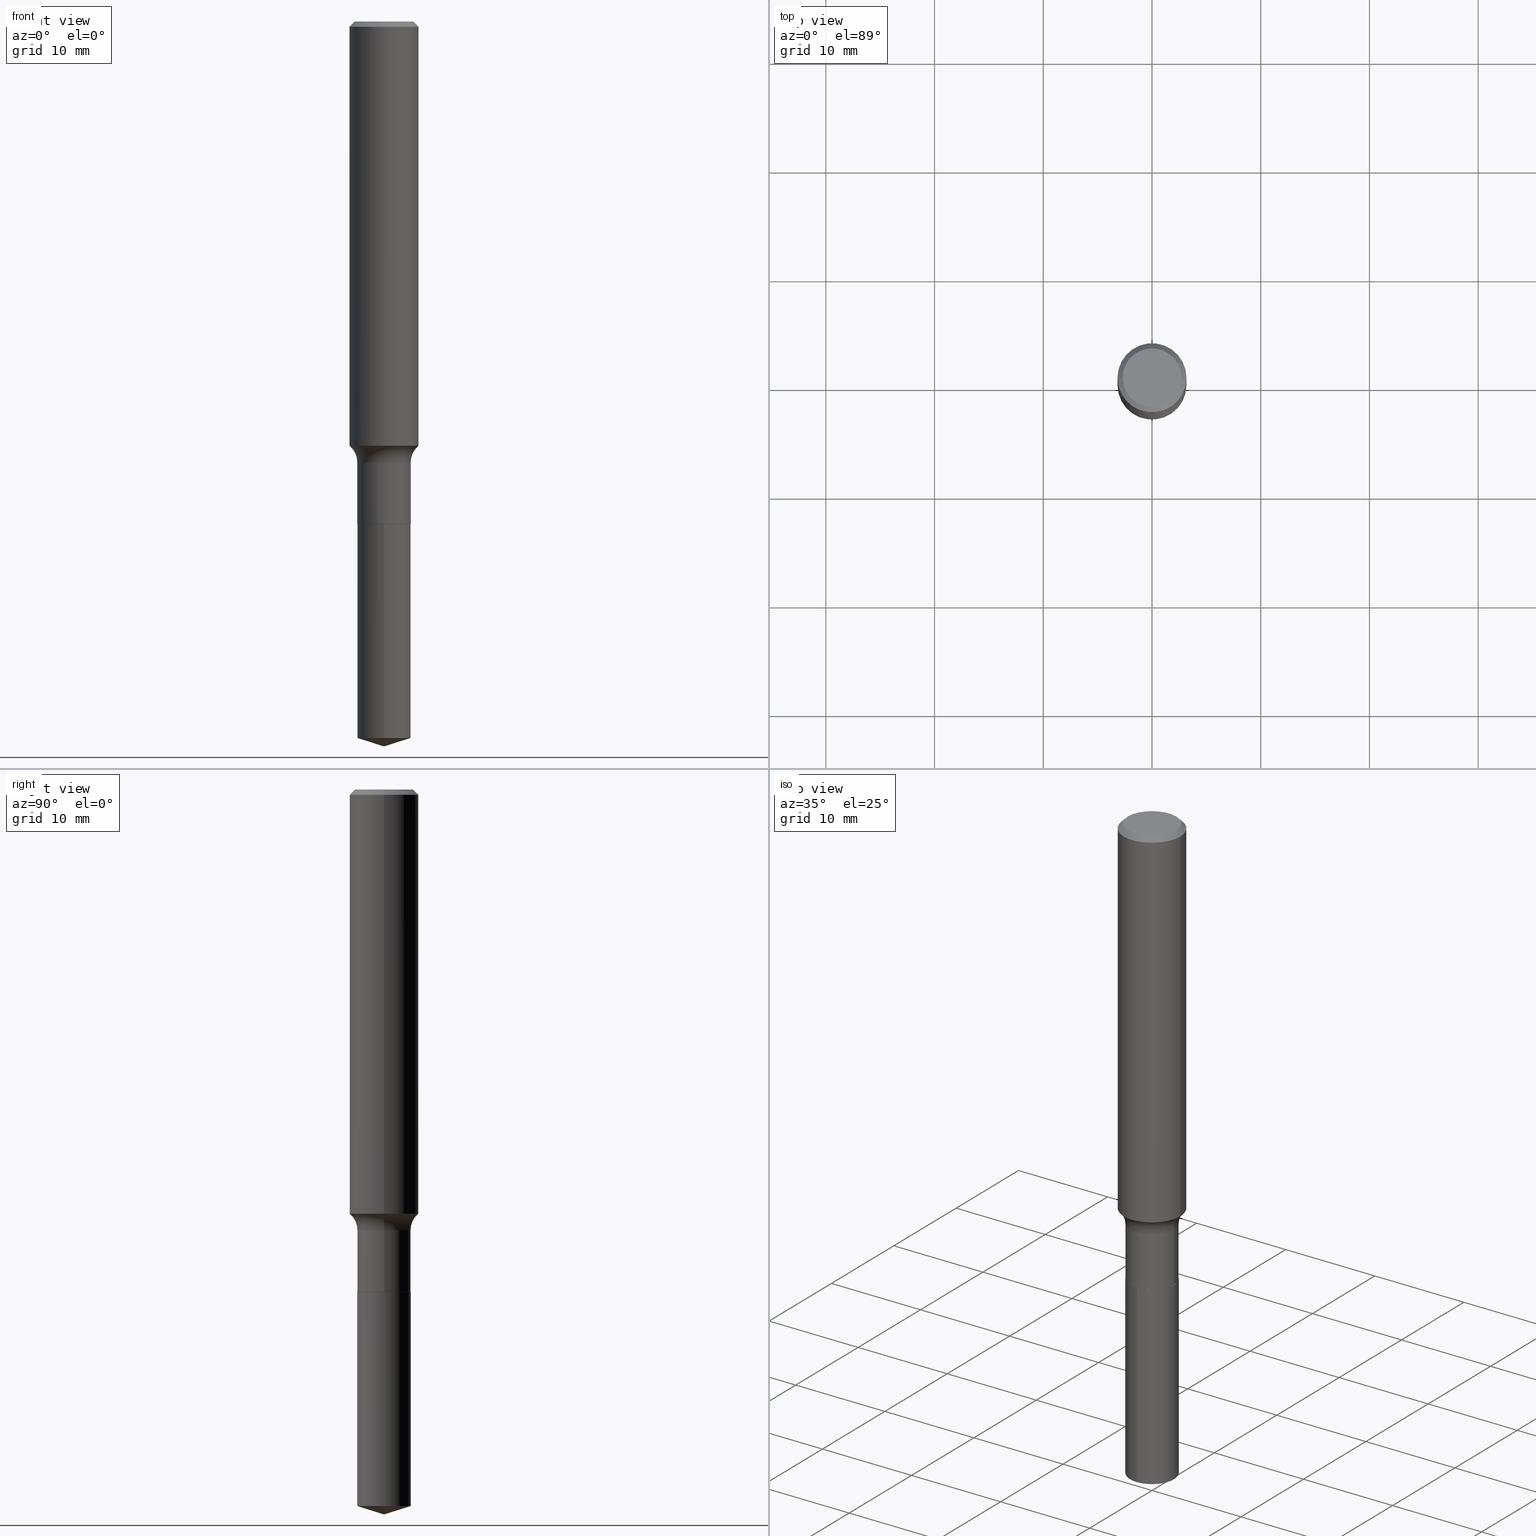
[diagram: canonical four-view strip — front | top / right | iso, engineering-drawing reading convention]
A machine part, canonical four-view strip (front | top / right | iso — engineering-drawing reading convention). The complete STEP part file that produces these views, byte-faithful:
ISO-10303-21;
HEADER;
FILE_DESCRIPTION (( 'STEP AP203' ),
    '1' );
FILE_NAME ('51775.STEP',
    '2024-04-19T13:22:10',
    ( '' ),
    ( '' ),
    'SwSTEP 2.0',
    'SolidWorks 2023',
    '' );
FILE_SCHEMA (( 'CONFIG_CONTROL_DESIGN' ));
ENDSEC;

DATA;
#1 = DIRECTION ( 'NONE',  ( 1.000000000000000000, -6.982962677686266711E-15, 4.876176775795935793E-29 ) ) ;
#2 = DIRECTION ( 'NONE',  ( -2.445468806185136597E-29, 3.491481338843145583E-15, 1.000000000000000000 ) ) ;
#3 = APPLICATION_PROTOCOL_DEFINITION ( 'international standard', 'config_control_design', 1994, #418 ) ;
#4 = VERTEX_POINT ( 'NONE', #309 ) ;
#5 = LINE ( 'NONE', #106, #86 ) ;
#6 = CIRCLE ( 'NONE', #203, 0.09674999999999996103 ) ;
#7 = EDGE_CURVE ( 'NONE', #466, #4, #6, .T. ) ;
#8 = PERSON ( 'UNSPECIFIED', 'UNSPECIFIED', 'UNSPECIFIED', ('UNSPECIFIED'), ('UNSPECIFIED'), ('UNSPECIFIED') ) ;
#9 = DATE_AND_TIME ( #123, #224 ) ;
#10 = ORIENTED_EDGE ( 'NONE', *, *, #220, .F. ) ;
#11 = DIRECTION ( 'NONE',  ( 0.000000000000000000, 0.000000000000000000, 1.000000000000000000 ) ) ;
#12 = ORIENTED_EDGE ( 'NONE', *, *, #89, .F. ) ;
#13 = PERSON_AND_ORGANIZATION ( #8, #426 ) ;
#14 = EDGE_LOOP ( 'NONE', ( #356, #412, #478, #138 ) ) ;
#15 = EDGE_CURVE ( 'NONE', #339, #4, #213, .T. ) ;
#16 = AXIS2_PLACEMENT_3D ( 'NONE', #57, #143, #209 ) ;
#17 = AXIS2_PLACEMENT_3D ( 'NONE', #406, #42, #186 ) ;
#18 = AXIS2_PLACEMENT_3D ( 'NONE', #191, #295, #447 ) ;
#19 = ORIENTED_EDGE ( 'NONE', *, *, #300, .T. ) ;
#20 = DIRECTION ( 'NONE',  ( -2.445468806185136597E-29, 3.491481338843145583E-15, 1.000000000000000000 ) ) ;
#21 = EDGE_CURVE ( 'NONE', #360, #248, #107, .T. ) ;
#22 = CIRCLE ( 'NONE', #411, 0.09675000000000000266 ) ;
#23 = DIRECTION ( 'NONE',  ( 1.000000000000000000, -6.982962677686266711E-15, 0.000000000000000000 ) ) ;
#24 = ORIENTED_EDGE ( 'NONE', *, *, #425, .F. ) ;
#25 = DIRECTION ( 'NONE',  ( -2.445445033381510289E-29, 3.491515382851002503E-15, 1.000000000000000000 ) ) ;
#26 = EDGE_LOOP ( 'NONE', ( #73, #19, #316 ) ) ;
#27 = CARTESIAN_POINT ( 'NONE',  ( 0.1250000000000000833, -8.728703347107839305E-16, 6.095220969744923945E-30 ) ) ;
#28 = ORIENTED_EDGE ( 'NONE', *, *, #481, .F. ) ;
#29 = AXIS2_PLACEMENT_3D ( 'NONE', #473, #20, #175 ) ;
#30 = CONICAL_SURFACE ( 'NONE', #276, 0.09625000000000000222, 0.7853981633975336552 ) ;
#31 = DIRECTION ( 'NONE',  ( -2.445445033381510289E-29, 3.491515382851002503E-15, 1.000000000000000000 ) ) ;
#32 = FACE_OUTER_BOUND ( 'NONE', #102, .T. ) ;
#33 = DIRECTION ( 'NONE',  ( -2.445468806185136597E-29, 3.491481338843145583E-15, 1.000000000000000000 ) ) ;
#34 = CYLINDRICAL_SURFACE ( 'NONE', #401, 0.1250000000000000833 ) ;
#35 = CARTESIAN_POINT ( 'NONE',  ( -0.09625000000000000222, -5.665361431517164076E-15, -1.818500000000000005 ) ) ;
#36 = MANIFOLD_SOLID_BREP ( 'Body-Move/Copy2[2]', #327 ) ;
#37 = DIRECTION ( 'NONE',  ( -2.445445033381510289E-29, 3.491515382851002503E-15, 1.000000000000000000 ) ) ;
#38 = ADVANCED_FACE ( 'NONE', ( #32 ), #386, .F. ) ;
#39 = EDGE_LOOP ( 'NONE', ( #273, #341, #233, #88 ) ) ;
#40 = AXIS2_PLACEMENT_3D ( 'NONE', #260, #147, #110 ) ;
#41 = FACE_OUTER_BOUND ( 'NONE', #330, .T. ) ;
#42 = DIRECTION ( 'NONE',  ( -2.438088387897960049E-29, 3.491481338843145188E-15, 1.000000000000000000 ) ) ;
#43 = ADVANCED_FACE ( 'NONE', ( #286 ), #34, .T. ) ;
#44 = APPROVAL_DATE_TIME ( #50, #285 ) ;
#45 = ORIENTED_EDGE ( 'NONE', *, *, #49, .F. ) ;
#46 = CC_DESIGN_PERSON_AND_ORGANIZATION_ASSIGNMENT ( #194, #419, ( #289 ) ) ;
#47 = VECTOR ( 'NONE', #185, 39.37007874015748143 ) ;
#48 = COORDINATED_UNIVERSAL_TIME_OFFSET ( 5, 0, .BEHIND. ) ;
#49 = EDGE_CURVE ( 'NONE', #393, #170, #471, .T. ) ;
#50 = DATE_AND_TIME ( #119, #489 ) ;
#51 = ORIENTED_EDGE ( 'NONE', *, *, #180, .F. ) ;
#52 = ORIENTED_EDGE ( 'NONE', *, *, #55, .F. ) ;
#53 = CONICAL_SURFACE ( 'NONE', #255, 124.8659371009115091, 1.265363707695883466 ) ;
#54 = PERSON_AND_ORGANIZATION ( #8, #426 ) ;
#55 = EDGE_CURVE ( 'NONE', #248, #466, #400, .T. ) ;
#56 = CARTESIAN_POINT ( 'NONE',  ( 4.447085024047671457E-29, -6.349258814686260126E-15, -1.818500000000000005 ) ) ;
#57 = CARTESIAN_POINT ( 'NONE',  ( 3.902968214671478497E-29, -5.572404216793660273E-15, -1.596000000000000085 ) ) ;
#58 = ORIENTED_EDGE ( 'NONE', *, *, #7, .T. ) ;
#59 = VECTOR ( 'NONE', #146, 39.37007874015748143 ) ;
#60 = CARTESIAN_POINT ( 'NONE',  ( 6.419293212626464648E-29, -9.165227879983881620E-15, -2.625000000000000000 ) ) ;
#61 = ORIENTED_EDGE ( 'NONE', *, *, #89, .T. ) ;
#62 = ADVANCED_FACE ( 'NONE', ( #71 ), #184, .F. ) ;
#63 = FACE_OUTER_BOUND ( 'NONE', #311, .T. ) ;
#64 = ORIENTED_EDGE ( 'NONE', *, *, #408, .F. ) ;
#65 = CYLINDRICAL_SURFACE ( 'NONE', #176, 0.09675000000000000266 ) ;
#66 = DIRECTION ( 'NONE',  ( 2.438088387897960049E-29, -3.491481338843145188E-15, -1.000000000000000000 ) ) ;
#67 = VECTOR ( 'NONE', #322, 39.37007874015748143 ) ;
#68 = CONICAL_SURFACE ( 'NONE', #77, 124.8659371009115091, 1.265363707695883466 ) ;
#69 = CYLINDRICAL_SURFACE ( 'NONE', #281, 0.1250000000000000833 ) ;
#70 = DIRECTION ( 'NONE',  ( -2.445468806185136597E-29, 3.491481338843145583E-15, 1.000000000000000000 ) ) ;
#71 = FACE_OUTER_BOUND ( 'NONE', #235, .T. ) ;
#72 = DIRECTION ( 'NONE',  ( 1.000000000000000000, -6.982962677686266711E-15, 4.875930095424100059E-29 ) ) ;
#73 = ORIENTED_EDGE ( 'NONE', *, *, #357, .F. ) ;
#74 = DIRECTION ( 'NONE',  ( -2.445445033381510289E-29, 3.491515382851002503E-15, 1.000000000000000000 ) ) ;
#75 = PRODUCT_DEFINITION ( 'UNKNOWN', '', #387, #240 ) ;
#76 = AXIS2_PLACEMENT_3D ( 'NONE', #477, #427, #392 ) ;
#77 = AXIS2_PLACEMENT_3D ( 'NONE', #480, #179, #282 ) ;
#78 = DIRECTION ( 'NONE',  ( -2.445468806185136597E-29, 3.491481338843145583E-15, 1.000000000000000000 ) ) ;
#79 = EDGE_LOOP ( 'NONE', ( #83, #353 ) ) ;
#80 = DIRECTION ( 'NONE',  ( -2.445468806185136597E-29, 3.491481338843145583E-15, 1.000000000000000000 ) ) ;
#81 = PERSON_AND_ORGANIZATION ( #8, #426 ) ;
#82 = CC_DESIGN_DATE_AND_TIME_ASSIGNMENT ( #343, #274, ( #75 ) ) ;
#83 = ORIENTED_EDGE ( 'NONE', *, *, #329, .F. ) ;
#84 = DIRECTION ( 'NONE',  ( -6.982962677686266711E-15, -1.000000000000000000, 3.500519750498804223E-15 ) ) ;
#85 = CONICAL_SURFACE ( 'NONE', #351, 0.1250000000000000000, 0.7853981633974447263 ) ;
#86 = VECTOR ( 'NONE', #367, 39.37007874015748143 ) ;
#87 = APPROVAL_ROLE ( '' ) ;
#88 = ORIENTED_EDGE ( 'NONE', *, *, #354, .F. ) ;
#89 = EDGE_CURVE ( 'NONE', #170, #91, #358, .T. ) ;
#90 = APPROVAL_STATUS ( 'not_yet_approved' ) ;
#91 = VERTEX_POINT ( 'NONE', #321 ) ;
#92 = CARTESIAN_POINT ( 'NONE',  ( -6.756016390661017652E-16, -0.09675000000000634481, -1.818499999999999783 ) ) ;
#93 = AXIS2_PLACEMENT_3D ( 'NONE', #214, #115, #142 ) ;
#94 = APPROVAL_ROLE ( '' ) ;
#95 = ADVANCED_FACE ( 'NONE', ( #63 ), #101, .T. ) ;
#96 = CARTESIAN_POINT ( 'NONE',  ( 4.447085024047671457E-29, -6.349258814686260126E-15, -1.818500000000000005 ) ) ;
#97 = VERTEX_POINT ( 'NONE', #250 ) ;
#98 = CARTESIAN_POINT ( 'NONE',  ( 4.445862289644578656E-29, -6.347513074016838623E-15, -1.818000000000000060 ) ) ;
#99 = AXIS2_PLACEMENT_3D ( 'NONE', #399, #204, #140 ) ;
#100 = VERTEX_POINT ( 'NONE', #60 ) ;
#101 = CYLINDRICAL_SURFACE ( 'NONE', #254, 0.09674999999999996103 ) ;
#102 = EDGE_LOOP ( 'NONE', ( #24, #64, #125, #58 ) ) ;
#103 = CARTESIAN_POINT ( 'NONE',  ( 0.000000000000000000, 0.000000000000000000, 0.000000000000000000 ) ) ;
#104 = DIRECTION ( 'NONE',  ( 1.000000000000000000, -6.982962677686266711E-15, 4.876176775795935793E-29 ) ) ;
#105 = DIRECTION ( 'NONE',  ( -0.7071067811866078578, 7.493145998870571886E-15, 0.7071067811864871766 ) ) ;
#106 = CARTESIAN_POINT ( 'NONE',  ( 6.419293212626464648E-29, -9.165227879983881620E-15, -2.625000000000000000 ) ) ;
#107 = LINE ( 'NONE', #294, #161 ) ;
#108 = AXIS2_PLACEMENT_3D ( 'NONE', #326, #150, #296 ) ;
#109 = EDGE_CURVE ( 'NONE', #4, #466, #200, .T. ) ;
#110 = DIRECTION ( 'NONE',  ( 1.000000000000000000, -6.982962677686265922E-15, 0.000000000000000000 ) ) ;
#111 = CARTESIAN_POINT ( 'NONE',  ( 6.344737756776535245E-29, -9.058656743156652309E-15, -2.594494842175957938 ) ) ;
#112 = VERTEX_POINT ( 'NONE', #202 ) ;
#113 = CARTESIAN_POINT ( 'NONE',  ( -0.1250000000000001388, -4.474477035340341246E-15, -1.535925567002259795 ) ) ;
#114 = VECTOR ( 'NONE', #241, 39.37007874015748143 ) ;
#115 = DIRECTION ( 'NONE',  ( 2.445445033381510008E-29, -3.491515382851002503E-15, -1.000000000000000000 ) ) ;
#116 = DIRECTION ( 'NONE',  ( -2.445468806185136597E-29, 3.491481338843145583E-15, 1.000000000000000000 ) ) ;
#117 = PERSON_AND_ORGANIZATION_ROLE ( 'creator' ) ;
#118 = ORIENTED_EDGE ( 'NONE', *, *, #145, .F. ) ;
#119 = CALENDAR_DATE ( 2024, 19, 4 ) ;
#120 =( NAMED_UNIT ( * ) SI_UNIT ( $, .STERADIAN. ) SOLID_ANGLE_UNIT ( ) );
#121 = CIRCLE ( 'NONE', #29, 0.1250000000000000000 ) ;
#122 = CIRCLE ( 'NONE', #345, 0.1062499999999999972 ) ;
#123 = CALENDAR_DATE ( 2024, 19, 4 ) ;
#124 = DIRECTION ( 'NONE',  ( -2.445468806185136597E-29, 3.491481338843145583E-15, 1.000000000000000000 ) ) ;
#125 = ORIENTED_EDGE ( 'NONE', *, *, #127, .T. ) ;
#126 = ORIENTED_EDGE ( 'NONE', *, *, #21, .T. ) ;
#127 = EDGE_CURVE ( 'NONE', #170, #466, #261, .T. ) ;
#128 = AXIS2_PLACEMENT_3D ( 'NONE', #445, #216, #251 ) ;
#129 = APPROVAL_PERSON_ORGANIZATION ( #54, #464, #94 ) ;
#130 = CARTESIAN_POINT ( 'NONE',  ( -0.1250000000000000000, -1.825881945371762185E-15, -0.01875000000000013115 ) ) ;
#131 = APPROVAL_STATUS ( 'not_yet_approved' ) ;
#132 = CC_DESIGN_DATE_AND_TIME_ASSIGNMENT ( #165, #246, ( #201 ) ) ;
#133 = EDGE_CURVE ( 'NONE', #268, #155, #434, .T. ) ;
#134 = DIRECTION ( 'NONE',  ( -6.982962677686265922E-15, -1.000000000000000000, 2.823615497327403880E-15 ) ) ;
#135 = ORIENTED_EDGE ( 'NONE', *, *, #324, .F. ) ;
#136 = CARTESIAN_POINT ( 'NONE',  ( 4.585254011597162998E-31, -6.546527510330944066E-17, -0.01875000000000013115 ) ) ;
#137 = CC_DESIGN_APPROVAL ( #389, ( #387 ) ) ;
#138 = ORIENTED_EDGE ( 'NONE', *, *, #21, .F. ) ;
#139 = LOCAL_TIME ( 9, 22, 10.00000000000000000, #239 ) ;
#140 = DIRECTION ( 'NONE',  ( 1.000000000000000000, -6.982962677686261977E-15, 0.000000000000000000 ) ) ;
#141 = VERTEX_POINT ( 'NONE', #279 ) ;
#142 = DIRECTION ( 'NONE',  ( 6.982962677686265922E-15, 1.000000000000000000, -3.491515382851002503E-15 ) ) ;
#143 = DIRECTION ( 'NONE',  ( -2.445468806185136597E-29, 3.491481338843145583E-15, 1.000000000000000000 ) ) ;
#144 = CARTESIAN_POINT ( 'NONE',  ( 0.09674999999999996103, -6.756016390661460400E-16, 4.717701030582566422E-30 ) ) ;
#145 = EDGE_CURVE ( 'NONE', #208, #91, #292, .T. ) ;
#146 = DIRECTION ( 'NONE',  ( 0.7071067811865450192, -7.319954787623246579E-15, -0.7071067811865500152 ) ) ;
#147 = DIRECTION ( 'NONE',  ( -2.445468806185136597E-29, 3.491481338843145583E-15, 1.000000000000000000 ) ) ;
#148 = VECTOR ( 'NONE', #105, 39.37007874015748143 ) ;
#149 = CARTESIAN_POINT ( 'NONE',  ( 4.447085024047671457E-29, -6.349258814686260126E-15, -1.818500000000000005 ) ) ;
#150 = DIRECTION ( 'NONE',  ( 2.445468806185136597E-29, -3.491481338843145583E-15, -1.000000000000000000 ) ) ;
#151 = ADVANCED_FACE ( 'NONE', ( #314 ), #65, .T. ) ;
#152 = CARTESIAN_POINT ( 'NONE',  ( 3.902968214671478497E-29, -5.572404216793660273E-15, -1.596000000000000085 ) ) ;
#153 = AXIS2_PLACEMENT_3D ( 'NONE', #247, #211, #23 ) ;
#154 = APPROVAL_ROLE ( '' ) ;
#155 = VERTEX_POINT ( 'NONE', #173 ) ;
#156 = CIRCLE ( 'NONE', #18, 0.07799999999999995826 ) ;
#157 = DIRECTION ( 'NONE',  ( 1.000000000000000000, -6.982962677686269077E-15, 0.000000000000000000 ) ) ;
#158 = ORIENTED_EDGE ( 'NONE', *, *, #451, .F. ) ;
#159 = APPROVAL_DATE_TIME ( #9, #389 ) ;
#160 = ORIENTED_EDGE ( 'NONE', *, *, #348, .T. ) ;
#161 = VECTOR ( 'NONE', #256, 39.37007874015748143 ) ;
#162 =( GEOMETRIC_REPRESENTATION_CONTEXT ( 3 ) GLOBAL_UNCERTAINTY_ASSIGNED_CONTEXT ( ( #172 ) ) GLOBAL_UNIT_ASSIGNED_CONTEXT ( ( #196, #382, #120 ) ) REPRESENTATION_CONTEXT ( 'NONE', 'WORKASPACE' ) );
#163 = ORIENTED_EDGE ( 'NONE', *, *, #377, .T. ) ;
#164 = ADVANCED_FACE ( 'NONE', ( #484 ), #317, .T. ) ;
#165 = DATE_AND_TIME ( #414, #404 ) ;
#166 = CYLINDRICAL_SURFACE ( 'NONE', #443, 0.09674999999999996103 ) ;
#167 = CIRCLE ( 'NONE', #237, 0.1062499999999999972 ) ;
#168 = APPROVAL_DATE_TIME ( #436, #464 ) ;
#169 = CARTESIAN_POINT ( 'NONE',  ( 6.874500968479413222E-16, 0.09674999999999364664, -1.818500000000000227 ) ) ;
#170 = VERTEX_POINT ( 'NONE', #352 ) ;
#171 = EDGE_CURVE ( 'NONE', #91, #208, #121, .T. ) ;
#172 = UNCERTAINTY_MEASURE_WITH_UNIT (LENGTH_MEASURE( 1.000000000000000082E-05 ), #196, 'distance_accuracy_value', 'NONE');
#173 = CARTESIAN_POINT ( 'NONE',  ( 6.874500968479606493E-16, 0.09674999999999366052, -1.818500000000000227 ) ) ;
#174 = ORIENTED_EDGE ( 'NONE', *, *, #7, .F. ) ;
#175 = DIRECTION ( 'NONE',  ( 1.000000000000000000, -6.982962677686266711E-15, 0.000000000000000000 ) ) ;
#176 = AXIS2_PLACEMENT_3D ( 'NONE', #96, #430, #284 ) ;
#177 = APPROVAL_PERSON_ORGANIZATION ( #13, #389, #154 ) ;
#178 = ORIENTED_EDGE ( 'NONE', *, *, #55, .T. ) ;
#179 = DIRECTION ( 'NONE',  ( -2.445445033381510289E-29, 3.491515382851002503E-15, 1.000000000000000000 ) ) ;
#180 = EDGE_CURVE ( 'NONE', #339, #248, #187, .T. ) ;
#181 = DIRECTION ( 'NONE',  ( -2.445468806185136597E-29, 3.491481338843145583E-15, 1.000000000000000000 ) ) ;
#182 = FACE_OUTER_BOUND ( 'NONE', #344, .T. ) ;
#183 = LINE ( 'NONE', #263, #455 ) ;
#184 = PLANE ( 'NONE',  #269 ) ;
#185 = DIRECTION ( 'NONE',  ( -2.445445033381510289E-29, 3.491515382851002503E-15, 1.000000000000000000 ) ) ;
#186 = DIRECTION ( 'NONE',  ( 1.000000000000000000, -6.982962677686265922E-15, 4.876176775795935793E-29 ) ) ;
#187 = CIRCLE ( 'NONE', #454, 0.09674999999999998879 ) ;
#188 = CONICAL_SURFACE ( 'NONE', #108, 0.1250000000000000000, 0.7853981633974447263 ) ;
#189 = ORIENTED_EDGE ( 'NONE', *, *, #451, .T. ) ;
#190 = DIRECTION ( 'NONE',  ( -6.982962677686265922E-15, -1.000000000000000000, 5.647230994654807760E-15 ) ) ;
#191 = CARTESIAN_POINT ( 'NONE',  ( -0.1747499999999999609, -4.330730786052885475E-15, -1.596000000000000085 ) ) ;
#192 = COORDINATED_UNIVERSAL_TIME_OFFSET ( 5, 0, .BEHIND. ) ;
#193 = CARTESIAN_POINT ( 'NONE',  ( 0.09625000000000000222, -7.021368972413563455E-15, -1.818500000000000005 ) ) ;
#194 = PERSON_AND_ORGANIZATION ( #8, #426 ) ;
#195 = ORIENTED_EDGE ( 'NONE', *, *, #220, .T. ) ;
#196 =( CONVERSION_BASED_UNIT ( 'INCH', #460 ) LENGTH_UNIT ( ) NAMED_UNIT ( #238 ) );
#197 = APPROVAL_STATUS ( 'not_yet_approved' ) ;
#198 = EDGE_LOOP ( 'NONE', ( #28, #210, #126, #51 ) ) ;
#199 = VERTEX_POINT ( 'NONE', #288 ) ;
#200 = CIRCLE ( 'NONE', #16, 0.09674999999999996103 ) ;
#201 = SECURITY_CLASSIFICATION ( '', '', #462 ) ;
#202 = CARTESIAN_POINT ( 'NONE',  ( 0.1062499999999999972, -8.259777185439879685E-16, 6.505936120475796882E-18 ) ) ;
#203 = AXIS2_PLACEMENT_3D ( 'NONE', #463, #124, #385 ) ;
#204 = DIRECTION ( 'NONE',  ( -6.982962677686266711E-15, -1.000000000000000000, 3.491481338843145583E-15 ) ) ;
#205 = AXIS2_PLACEMENT_3D ( 'NONE', #219, #2, #487 ) ;
#206 = ORIENTED_EDGE ( 'NONE', *, *, #133, .T. ) ;
#207 = CARTESIAN_POINT ( 'NONE',  ( 0.09674999999999998879, -7.023114713082984958E-15, -1.818000000000000060 ) ) ;
#208 = VERTEX_POINT ( 'NONE', #130 ) ;
#209 = DIRECTION ( 'NONE',  ( 1.000000000000000000, -6.982962677686267499E-15, 0.000000000000000000 ) ) ;
#210 = ORIENTED_EDGE ( 'NONE', *, *, #306, .T. ) ;
#211 = DIRECTION ( 'NONE',  ( -2.445468806185136597E-29, 3.491481338843145583E-15, 1.000000000000000000 ) ) ;
#212 = AXIS2_PLACEMENT_3D ( 'NONE', #490, #37, #190 ) ;
#213 = LINE ( 'NONE', #441, #67 ) ;
#214 = CARTESIAN_POINT ( 'NONE',  ( 4.447085024047671457E-29, -6.349258814686260126E-15, -1.818500000000000005 ) ) ;
#215 = CARTESIAN_POINT ( 'NONE',  ( 4.447085024047671457E-29, -6.349258814686260126E-15, -1.818500000000000005 ) ) ;
#216 = DIRECTION ( 'NONE',  ( -2.445468806185136597E-29, 3.491481338843145583E-15, 1.000000000000000000 ) ) ;
#217 = APPLICATION_CONTEXT ( 'configuration controlled 3d designs of mechanical parts and assemblies' ) ;
#218 = PLANE ( 'NONE',  #93 ) ;
#219 = CARTESIAN_POINT ( 'NONE',  ( 3.756058062726244785E-29, -5.362655455040467267E-15, -1.535925567002259795 ) ) ;
#220 = EDGE_CURVE ( 'NONE', #393, #208, #278, .T. ) ;
#221 = DIRECTION ( 'NONE',  ( -2.445468806185136597E-29, 3.491481338843145583E-15, 1.000000000000000000 ) ) ;
#222 = ORIENTED_EDGE ( 'NONE', *, *, #408, .T. ) ;
#223 = DIRECTION ( 'NONE',  ( -6.982962677686265922E-15, -1.000000000000000000, 5.647230994654807760E-15 ) ) ;
#224 = LOCAL_TIME ( 9, 22, 10.00000000000000000, #335 ) ;
#225 = VECTOR ( 'NONE', #229, 39.37007874015748143 ) ;
#226 = DIRECTION ( 'NONE',  ( 1.000000000000000000, -6.982962677686266711E-15, 4.876176775795936353E-29 ) ) ;
#227 = DIRECTION ( 'NONE',  ( -2.445468806185136597E-29, 3.491481338843145583E-15, 1.000000000000000000 ) ) ;
#228 = ORIENTED_EDGE ( 'NONE', *, *, #324, .T. ) ;
#229 = DIRECTION ( 'NONE',  ( -0.7071067811865450192, 2.468850131082230634E-15, -0.7071067811865500152 ) ) ;
#230 = ORIENTED_EDGE ( 'NONE', *, *, #109, .T. ) ;
#231 = ORIENTED_EDGE ( 'NONE', *, *, #15, .T. ) ;
#232 = AXIS2_PLACEMENT_3D ( 'NONE', #372, #492, #157 ) ;
#233 = ORIENTED_EDGE ( 'NONE', *, *, #171, .T. ) ;
#234 = PERSON_AND_ORGANIZATION ( #8, #426 ) ;
#235 = EDGE_LOOP ( 'NONE', ( #228, #163 ) ) ;
#236 = MECHANICAL_CONTEXT ( 'NONE', #217, 'mechanical' ) ;
#237 = AXIS2_PLACEMENT_3D ( 'NONE', #375, #450, #305 ) ;
#238 = DIMENSIONAL_EXPONENTS ( 1.000000000000000000, 0.000000000000000000, 0.000000000000000000, 0.000000000000000000, 0.000000000000000000, 0.000000000000000000, 0.000000000000000000 ) ;
#239 = COORDINATED_UNIVERSAL_TIME_OFFSET ( 5, 0, .BEHIND. ) ;
#240 = DESIGN_CONTEXT ( 'detailed design', #418, 'design' ) ;
#241 = DIRECTION ( 'NONE',  ( -2.445468806185136877E-29, 3.491481338843145188E-15, 1.000000000000000000 ) ) ;
#242 = DIRECTION ( 'NONE',  ( -2.445468806185136877E-29, 3.491481338843145188E-15, 1.000000000000000000 ) ) ;
#243 = VERTEX_POINT ( 'NONE', #363 ) ;
#244 = DIRECTION ( 'NONE',  ( 2.445468806185136597E-29, -3.491481338843145583E-15, -1.000000000000000000 ) ) ;
#245 = ORIENTED_EDGE ( 'NONE', *, *, #334, .T. ) ;
#246 = DATE_TIME_ROLE ( 'classification_date' ) ;
#247 = CARTESIAN_POINT ( 'NONE',  ( 4.585254011597162998E-31, -6.546527510330944066E-17, -0.01875000000000013115 ) ) ;
#248 = VERTEX_POINT ( 'NONE', #207 ) ;
#249 = EDGE_CURVE ( 'NONE', #243, #155, #380, .T. ) ;
#250 = CARTESIAN_POINT ( 'NONE',  ( -0.1062499999999999972, 7.746724220558198188E-16, 6.505936120465012444E-18 ) ) ;
#251 = DIRECTION ( 'NONE',  ( 1.000000000000000000, -6.982962677686266711E-15, 4.883557194083112901E-29 ) ) ;
#252 = CC_DESIGN_PERSON_AND_ORGANIZATION_ASSIGNMENT ( #234, #421, ( #75 ) ) ;
#253 = FACE_OUTER_BOUND ( 'NONE', #14, .T. ) ;
#254 = AXIS2_PLACEMENT_3D ( 'NONE', #103, #390, #437 ) ;
#255 = AXIS2_PLACEMENT_3D ( 'NONE', #467, #347, #84 ) ;
#256 = DIRECTION ( 'NONE',  ( 0.7071067811866078578, -2.468850131082888544E-15, 0.7071067811864871766 ) ) ;
#257 = PLANE ( 'NONE',  #17 ) ;
#258 = DIRECTION ( 'NONE',  ( -6.982962677686265922E-15, -1.000000000000000000, 2.823615497327403880E-15 ) ) ;
#259 = ORIENTED_EDGE ( 'NONE', *, *, #300, .F. ) ;
#260 = CARTESIAN_POINT ( 'NONE',  ( 4.445862289644578656E-29, -6.347513074016838623E-15, -1.818000000000000060 ) ) ;
#261 = CIRCLE ( 'NONE', #99, 0.07799999999999995826 ) ;
#262 = CC_DESIGN_APPROVAL ( #464, ( #201 ) ) ;
#263 = CARTESIAN_POINT ( 'NONE',  ( 6.419380432480186315E-29, -9.165104061927306929E-15, -2.625000000000000000 ) ) ;
#264 = ADVANCED_FACE ( 'NONE', ( #349 ), #85, .T. ) ;
#265 = COORDINATED_UNIVERSAL_TIME_OFFSET ( 5, 0, .BEHIND. ) ;
#266 = ORIENTED_EDGE ( 'NONE', *, *, #249, .F. ) ;
#267 = ADVANCED_BREP_SHAPE_REPRESENTATION ( '51775', ( #359, #36, #417 ), #162 ) ;
#268 = VERTEX_POINT ( 'NONE', #319 ) ;
#269 = AXIS2_PLACEMENT_3D ( 'NONE', #488, #66, #365 ) ;
#270 = DIRECTION ( 'NONE',  ( 1.000000000000000000, 0.000000000000000000, 0.000000000000000000 ) ) ;
#271 = CC_DESIGN_APPROVAL ( #285, ( #75 ) ) ;
#272 = ADVANCED_FACE ( 'NONE', ( #355 ), #68, .T. ) ;
#273 = ORIENTED_EDGE ( 'NONE', *, *, #377, .F. ) ;
#274 = DATE_TIME_ROLE ( 'creation_date' ) ;
#275 = ORIENTED_EDGE ( 'NONE', *, *, #49, .T. ) ;
#276 = AXIS2_PLACEMENT_3D ( 'NONE', #149, #33, #323 ) ;
#277 = ADVANCED_FACE ( 'NONE', ( #397 ), #166, .T. ) ;
#278 = LINE ( 'NONE', #440, #114 ) ;
#279 = CARTESIAN_POINT ( 'NONE',  ( -6.756016390660825367E-16, -0.09675000000000903710, -2.594494842175957050 ) ) ;
#280 = ORIENTED_EDGE ( 'NONE', *, *, #145, .T. ) ;
#281 = AXIS2_PLACEMENT_3D ( 'NONE', #486, #227, #1 ) ;
#282 = DIRECTION ( 'NONE',  ( -6.982962677686266711E-15, -1.000000000000000000, 3.500519750498804223E-15 ) ) ;
#283 = ORIENTED_EDGE ( 'NONE', *, *, #180, .T. ) ;
#284 = DIRECTION ( 'NONE',  ( -6.982962677686265922E-15, -1.000000000000000000, 2.823615497327403880E-15 ) ) ;
#285 = APPROVAL ( #197, 'UNSPECIFIED' ) ;
#286 = FACE_OUTER_BOUND ( 'NONE', #378, .T. ) ;
#287 = CARTESIAN_POINT ( 'NONE',  ( 0.1250000000000000000, -9.230275248247509846E-16, -0.01875000000000013115 ) ) ;
#288 = CARTESIAN_POINT ( 'NONE',  ( -0.09625000000000000222, -5.662712204343052875E-15, -1.818500000000000005 ) ) ;
#289 = PRODUCT ( '51775', '51775', '', ( #236 ) ) ;
#290 = DIRECTION ( 'NONE',  ( -2.445468806185136877E-29, 3.491481338843145188E-15, 1.000000000000000000 ) ) ;
#291 = CARTESIAN_POINT ( 'NONE',  ( -1.591006383764329968E-46, 2.271535455632767580E-32, 6.505936120470314915E-18 ) ) ;
#292 = CIRCLE ( 'NONE', #153, 0.1250000000000000000 ) ;
#293 = AXIS2_PLACEMENT_3D ( 'NONE', #215, #80, #299 ) ;
#294 = CARTESIAN_POINT ( 'NONE',  ( 0.09625000000000000222, -7.021368972413563455E-15, -1.818500000000000005 ) ) ;
#295 = DIRECTION ( 'NONE',  ( 7.105427357601001859E-15, 1.000000000000000000, -3.491481338843145583E-15 ) ) ;
#296 = DIRECTION ( 'NONE',  ( -1.000000000000000000, 6.982962677686266711E-15, 0.000000000000000000 ) ) ;
#297 = CARTESIAN_POINT ( 'NONE',  ( 4.447085024047671457E-29, -6.349258814686260126E-15, -1.818500000000000005 ) ) ;
#298 = ORIENTED_EDGE ( 'NONE', *, *, #133, .F. ) ;
#299 = DIRECTION ( 'NONE',  ( 1.000000000000000000, -6.982962677686269077E-15, 0.000000000000000000 ) ) ;
#300 = EDGE_CURVE ( 'NONE', #100, #268, #183, .T. ) ;
#301 = AXIS2_PLACEMENT_3D ( 'NONE', #56, #31, #134 ) ;
#302 = CIRCLE ( 'NONE', #293, 0.09625000000000000222 ) ;
#303 = PERSON_AND_ORGANIZATION ( #8, #426 ) ;
#304 = EDGE_LOOP ( 'NONE', ( #160, #206, #266, #158 ) ) ;
#305 = DIRECTION ( 'NONE',  ( 1.000000000000000000, -6.982962677686266711E-15, 4.875930095424100059E-29 ) ) ;
#306 = EDGE_CURVE ( 'NONE', #199, #360, #302, .T. ) ;
#307 = CLOSED_SHELL ( 'NONE', ( #164, #272, #448, #151, #468 ) ) ;
#308 = PERSON_AND_ORGANIZATION_ROLE ( 'design_supplier' ) ;
#309 = CARTESIAN_POINT ( 'NONE',  ( -0.09674999999999996103, -5.272508548557352893E-15, -1.596000000000000085 ) ) ;
#310 = AXIS2_PLACEMENT_3D ( 'NONE', #297, #221, #376 ) ;
#311 = EDGE_LOOP ( 'NONE', ( #457, #283, #178, #332 ) ) ;
#312 = VECTOR ( 'NONE', #25, 39.37007874015748143 ) ;
#313 = APPROVAL_PERSON_ORGANIZATION ( #459, #285, #87 ) ;
#314 = FACE_OUTER_BOUND ( 'NONE', #320, .T. ) ;
#315 = DIRECTION ( 'NONE',  ( -2.445468806185136597E-29, 3.491481338843145583E-15, 1.000000000000000000 ) ) ;
#316 = ORIENTED_EDGE ( 'NONE', *, *, #348, .F. ) ;
#317 = CYLINDRICAL_SURFACE ( 'NONE', #76, 0.09675000000000000266 ) ;
#318 = ORIENTED_EDGE ( 'NONE', *, *, #357, .T. ) ;
#319 = CARTESIAN_POINT ( 'NONE',  ( 6.874500968479600576E-16, 0.09674999999999089884, -2.594494842175958382 ) ) ;
#320 = EDGE_LOOP ( 'NONE', ( #298, #420, #189, #449 ) ) ;
#321 = CARTESIAN_POINT ( 'NONE',  ( 0.1250000000000000000, -9.383356098140928781E-16, -0.01875000000000013115 ) ) ;
#322 = DIRECTION ( 'NONE',  ( -2.445468806185136877E-29, 3.491481338843145188E-15, 1.000000000000000000 ) ) ;
#323 = DIRECTION ( 'NONE',  ( 1.000000000000000000, -6.982962677686269077E-15, 0.000000000000000000 ) ) ;
#324 = EDGE_CURVE ( 'NONE', #97, #112, #122, .T. ) ;
#325 =( LENGTH_UNIT ( ) NAMED_UNIT ( * ) SI_UNIT ( $, .METRE. ) );
#326 = CARTESIAN_POINT ( 'NONE',  ( 4.585254011597162998E-31, -6.546527510330944066E-17, -0.01875000000000013115 ) ) ;
#327 = CLOSED_SHELL ( 'NONE', ( #388, #368, #458, #342, #277, #95, #38, #43, #264, #62, #424, #465 ) ) ;
#328 = CIRCLE ( 'NONE', #205, 0.1250000000000001665 ) ;
#329 = EDGE_CURVE ( 'NONE', #360, #199, #337, .T. ) ;
#330 = EDGE_LOOP ( 'NONE', ( #259, #318, #491 ) ) ;
#331 = CARTESIAN_POINT ( 'NONE',  ( 0.000000000000000000, 0.000000000000000000, 0.000000000000000000 ) ) ;
#332 = ORIENTED_EDGE ( 'NONE', *, *, #109, .F. ) ;
#333 = FACE_OUTER_BOUND ( 'NONE', #39, .T. ) ;
#334 = EDGE_CURVE ( 'NONE', #155, #243, #433, .T. ) ;
#335 = COORDINATED_UNIVERSAL_TIME_OFFSET ( 5, 0, .BEHIND. ) ;
#336 = DIRECTION ( 'NONE',  ( 1.000000000000000000, -6.982962677686266711E-15, 4.883557194083112901E-29 ) ) ;
#337 = CIRCLE ( 'NONE', #232, 0.09625000000000000222 ) ;
#338 = CALENDAR_DATE ( 2024, 19, 4 ) ;
#339 = VERTEX_POINT ( 'NONE', #444 ) ;
#340 = CARTESIAN_POINT ( 'NONE',  ( 0.000000000000000000, 0.000000000000000000, 0.000000000000000000 ) ) ;
#341 = ORIENTED_EDGE ( 'NONE', *, *, #474, .T. ) ;
#342 = ADVANCED_FACE ( 'NONE', ( #379 ), #479, .F. ) ;
#343 = DATE_AND_TIME ( #338, #374 ) ;
#344 = EDGE_LOOP ( 'NONE', ( #222, #195, #435, #12 ) ) ;
#345 = AXIS2_PLACEMENT_3D ( 'NONE', #291, #116, #72 ) ;
#346 = ORIENTED_EDGE ( 'NONE', *, *, #425, .T. ) ;
#347 = DIRECTION ( 'NONE',  ( -2.445445033381510289E-29, 3.491515382851002503E-15, 1.000000000000000000 ) ) ;
#348 = EDGE_CURVE ( 'NONE', #141, #268, #394, .T. ) ;
#349 = FACE_OUTER_BOUND ( 'NONE', #422, .T. ) ;
#350 = CC_DESIGN_PERSON_AND_ORGANIZATION_ASSIGNMENT ( #384, #117, ( #387 ) ) ;
#351 = AXIS2_PLACEMENT_3D ( 'NONE', #136, #244, #395 ) ;
#352 = CARTESIAN_POINT ( 'NONE',  ( 0.1250000000000001388, -6.235525789751252183E-15, -1.535925567002259795 ) ) ;
#353 = ORIENTED_EDGE ( 'NONE', *, *, #306, .F. ) ;
#354 = EDGE_CURVE ( 'NONE', #97, #208, #371, .T. ) ;
#355 = FACE_OUTER_BOUND ( 'NONE', #26, .T. ) ;
#356 = ORIENTED_EDGE ( 'NONE', *, *, #329, .T. ) ;
#357 = EDGE_CURVE ( 'NONE', #100, #141, #5, .T. ) ;
#358 = LINE ( 'NONE', #27, #362 ) ;
#359 = MANIFOLD_SOLID_BREP ( 'Body-Move/Copy2[1]', #307 ) ;
#360 = VERTEX_POINT ( 'NONE', #193 ) ;
#361 = CC_DESIGN_PERSON_AND_ORGANIZATION_ASSIGNMENT ( #303, #456, ( #201 ) ) ;
#362 = VECTOR ( 'NONE', #242, 39.37007874015748143 ) ;
#363 = CARTESIAN_POINT ( 'NONE',  ( -6.756016390661017652E-16, -0.09675000000000634481, -1.818499999999999783 ) ) ;
#364 = CC_DESIGN_SECURITY_CLASSIFICATION ( #201, ( #387 ) ) ;
#365 = DIRECTION ( 'NONE',  ( -1.000000000000000000, 6.982962677686265922E-15, -4.876176775795935793E-29 ) ) ;
#366 = PRODUCT_DEFINITION_SHAPE ( 'NONE', 'NONE',  #75 ) ;
#367 = DIRECTION ( 'NONE',  ( -6.659769872151614734E-15, -0.9537169507482242681, 0.3007057995042816678 ) ) ;
#368 = ADVANCED_FACE ( 'NONE', ( #333 ), #188, .T. ) ;
#369 = CARTESIAN_POINT ( 'NONE',  ( 3.756058062726244785E-29, -5.362655455040467267E-15, -1.535925567002259795 ) ) ;
#370 = FACE_OUTER_BOUND ( 'NONE', #198, .T. ) ;
#371 = LINE ( 'NONE', #413, #225 ) ;
#372 = CARTESIAN_POINT ( 'NONE',  ( 4.447085024047671457E-29, -6.349258814686260126E-15, -1.818500000000000005 ) ) ;
#373 = VECTOR ( 'NONE', #290, 39.37007874015748143 ) ;
#374 = LOCAL_TIME ( 9, 22, 10.00000000000000000, #192 ) ;
#375 = CARTESIAN_POINT ( 'NONE',  ( -1.591006383764329968E-46, 2.271535455632767580E-32, 6.505936120470314915E-18 ) ) ;
#376 = DIRECTION ( 'NONE',  ( 1.000000000000000000, -6.982962677686269077E-15, 0.000000000000000000 ) ) ;
#377 = EDGE_CURVE ( 'NONE', #112, #97, #167, .T. ) ;
#378 = EDGE_LOOP ( 'NONE', ( #10, #275, #61, #118 ) ) ;
#379 = FACE_OUTER_BOUND ( 'NONE', #383, .T. ) ;
#380 = CIRCLE ( 'NONE', #301, 0.09675000000000000266 ) ;
#381 = AXIS2_PLACEMENT_3D ( 'NONE', #410, #403, #258 ) ;
#382 =( NAMED_UNIT ( * ) PLANE_ANGLE_UNIT ( ) SI_UNIT ( $, .RADIAN. ) );
#383 = EDGE_LOOP ( 'NONE', ( #45, #346, #230, #398 ) ) ;
#384 = PERSON_AND_ORGANIZATION ( #8, #426 ) ;
#385 = DIRECTION ( 'NONE',  ( 1.000000000000000000, -6.982962677686267499E-15, 0.000000000000000000 ) ) ;
#386 = TOROIDAL_SURFACE ( 'NONE', #128, 0.1747499999999999609, 0.07799999999999994438 ) ;
#387 = PRODUCT_DEFINITION_FORMATION_WITH_SPECIFIED_SOURCE ( 'ANY', '', #289, .NOT_KNOWN. ) ;
#388 = ADVANCED_FACE ( 'NONE', ( #253 ), #30, .T. ) ;
#389 = APPROVAL ( #90, 'UNSPECIFIED' ) ;
#390 = DIRECTION ( 'NONE',  ( -2.445468806185136597E-29, 3.491481338843145583E-15, 1.000000000000000000 ) ) ;
#391 = SHAPE_DEFINITION_REPRESENTATION ( #366, #267 ) ;
#392 = DIRECTION ( 'NONE',  ( -6.982962677686265922E-15, -1.000000000000000000, 2.823615497327403880E-15 ) ) ;
#393 = VERTEX_POINT ( 'NONE', #113 ) ;
#394 = CIRCLE ( 'NONE', #212, 0.09675000000000000266 ) ;
#395 = DIRECTION ( 'NONE',  ( -1.000000000000000000, 6.982962677686266711E-15, 0.000000000000000000 ) ) ;
#396 = ORIENTED_EDGE ( 'NONE', *, *, #474, .F. ) ;
#397 = FACE_OUTER_BOUND ( 'NONE', #428, .T. ) ;
#398 = ORIENTED_EDGE ( 'NONE', *, *, #127, .F. ) ;
#399 = CARTESIAN_POINT ( 'NONE',  ( 0.1747499999999999609, -6.792676944719336232E-15, -1.596000000000000085 ) ) ;
#400 = LINE ( 'NONE', #144, #373 ) ;
#401 = AXIS2_PLACEMENT_3D ( 'NONE', #405, #438, #104 ) ;
#402 = AXIS2_PLACEMENT_3D ( 'NONE', #152, #70, #336 ) ;
#403 = DIRECTION ( 'NONE',  ( -2.445445033381510289E-29, 3.491515382851002503E-15, 1.000000000000000000 ) ) ;
#404 = LOCAL_TIME ( 9, 22, 10.00000000000000000, #265 ) ;
#405 = CARTESIAN_POINT ( 'NONE',  ( 0.000000000000000000, 0.000000000000000000, 0.000000000000000000 ) ) ;
#406 = CARTESIAN_POINT ( 'NONE',  ( 4.447085024047671457E-29, -6.349258814686260126E-15, -1.818500000000000005 ) ) ;
#407 = FACE_OUTER_BOUND ( 'NONE', #79, .T. ) ;
#408 = EDGE_CURVE ( 'NONE', #170, #393, #328, .T. ) ;
#409 = EDGE_LOOP ( 'NONE', ( #476, #245 ) ) ;
#410 = CARTESIAN_POINT ( 'NONE',  ( 4.447085024047671457E-29, -6.349258814686260126E-15, -1.818500000000000005 ) ) ;
#411 = AXIS2_PLACEMENT_3D ( 'NONE', #111, #74, #223 ) ;
#412 = ORIENTED_EDGE ( 'NONE', *, *, #481, .T. ) ;
#413 = CARTESIAN_POINT ( 'NONE',  ( -0.1250000000000000000, 8.074050596074738982E-16, -0.01875000000000013115 ) ) ;
#414 = CALENDAR_DATE ( 2024, 19, 4 ) ;
#415 = APPLICATION_PROTOCOL_DEFINITION ( 'international standard', 'config_control_design', 1994, #217 ) ;
#416 = EDGE_CURVE ( 'NONE', #248, #339, #472, .T. ) ;
#417 = AXIS2_PLACEMENT_3D ( 'NONE', #340, #11, #270 ) ;
#418 = APPLICATION_CONTEXT ( 'configuration controlled 3d designs of mechanical parts and assemblies' ) ;
#419 = PERSON_AND_ORGANIZATION_ROLE ( 'design_owner' ) ;
#420 = ORIENTED_EDGE ( 'NONE', *, *, #429, .T. ) ;
#421 = PERSON_AND_ORGANIZATION_ROLE ( 'creator' ) ;
#422 = EDGE_LOOP ( 'NONE', ( #396, #135, #482, #280 ) ) ;
#423 = LINE ( 'NONE', #92, #47 ) ;
#424 = ADVANCED_FACE ( 'NONE', ( #407 ), #257, .F. ) ;
#425 = EDGE_CURVE ( 'NONE', #393, #4, #156, .T. ) ;
#426 = ORGANIZATION ( 'UNSPECIFIED', 'UNSPECIFIED', '' ) ;
#427 = DIRECTION ( 'NONE',  ( -2.445445033381510289E-29, 3.491515382851002503E-15, 1.000000000000000000 ) ) ;
#428 = EDGE_LOOP ( 'NONE', ( #431, #231, #174, #52 ) ) ;
#429 = EDGE_CURVE ( 'NONE', #268, #141, #22, .T. ) ;
#430 = DIRECTION ( 'NONE',  ( -2.445445033381510289E-29, 3.491515382851002503E-15, 1.000000000000000000 ) ) ;
#431 = ORIENTED_EDGE ( 'NONE', *, *, #416, .T. ) ;
#432 = AXIS2_PLACEMENT_3D ( 'NONE', #369, #181, #485 ) ;
#433 = CIRCLE ( 'NONE', #381, 0.09675000000000000266 ) ;
#434 = LINE ( 'NONE', #169, #312 ) ;
#435 = ORIENTED_EDGE ( 'NONE', *, *, #171, .F. ) ;
#436 = DATE_AND_TIME ( #469, #139 ) ;
#437 = DIRECTION ( 'NONE',  ( 1.000000000000000000, -6.982962677686266711E-15, 4.876176775795936353E-29 ) ) ;
#438 = DIRECTION ( 'NONE',  ( -2.445468806185136597E-29, 3.491481338843145583E-15, 1.000000000000000000 ) ) ;
#439 = LINE ( 'NONE', #35, #148 ) ;
#440 = CARTESIAN_POINT ( 'NONE',  ( -0.1250000000000000833, 8.881784197001258240E-16, -6.148668862818636431E-30 ) ) ;
#441 = CARTESIAN_POINT ( 'NONE',  ( -0.09674999999999996103, 6.874500968478966529E-16, -4.759069699821619835E-30 ) ) ;
#442 = FACE_OUTER_BOUND ( 'NONE', #409, .T. ) ;
#443 = AXIS2_PLACEMENT_3D ( 'NONE', #331, #78, #226 ) ;
#444 = CARTESIAN_POINT ( 'NONE',  ( -0.09674999999999998879, -5.272508548557352893E-15, -1.818000000000000060 ) ) ;
#445 = CARTESIAN_POINT ( 'NONE',  ( 3.902968214671478497E-29, -5.572404216793660273E-15, -1.596000000000000085 ) ) ;
#446 = PRODUCT_RELATED_PRODUCT_CATEGORY ( 'detail', '', ( #289 ) ) ;
#447 = DIRECTION ( 'NONE',  ( -1.000000000000000000, 7.105427357601001859E-15, 0.000000000000000000 ) ) ;
#448 = ADVANCED_FACE ( 'NONE', ( #41 ), #53, .T. ) ;
#449 = ORIENTED_EDGE ( 'NONE', *, *, #334, .F. ) ;
#450 = DIRECTION ( 'NONE',  ( -2.445468806185136597E-29, 3.491481338843145583E-15, 1.000000000000000000 ) ) ;
#451 = EDGE_CURVE ( 'NONE', #141, #243, #423, .T. ) ;
#452 = CARTESIAN_POINT ( 'NONE',  ( 0.09674999999999996103, -6.248005855859806608E-15, -1.596000000000000085 ) ) ;
#453 = DIRECTION ( 'NONE',  ( 6.776566513254239994E-15, 0.9537169507482263775, 0.3007057995042750065 ) ) ;
#454 = AXIS2_PLACEMENT_3D ( 'NONE', #98, #315, #475 ) ;
#455 = VECTOR ( 'NONE', #453, 39.37007874015748854 ) ;
#456 = PERSON_AND_ORGANIZATION_ROLE ( 'classification_officer' ) ;
#457 = ORIENTED_EDGE ( 'NONE', *, *, #15, .F. ) ;
#458 = ADVANCED_FACE ( 'NONE', ( #182 ), #69, .T. ) ;
#459 = PERSON_AND_ORGANIZATION ( #8, #426 ) ;
#460 = LENGTH_MEASURE_WITH_UNIT ( LENGTH_MEASURE( 0.02539999999999999897 ), #325 );
#461 = CONICAL_SURFACE ( 'NONE', #310, 0.09625000000000000222, 0.7853981633975336552 ) ;
#462 = SECURITY_CLASSIFICATION_LEVEL ( 'unclassified' ) ;
#463 = CARTESIAN_POINT ( 'NONE',  ( 3.902968214671478497E-29, -5.572404216793660273E-15, -1.596000000000000085 ) ) ;
#464 = APPROVAL ( #131, 'UNSPECIFIED' ) ;
#465 = ADVANCED_FACE ( 'NONE', ( #370 ), #461, .T. ) ;
#466 = VERTEX_POINT ( 'NONE', #452 ) ;
#467 = CARTESIAN_POINT ( 'NONE',  ( -8.985802707548724002E-28, 1.282960695743594653E-13, 36.74507874015748143 ) ) ;
#468 = ADVANCED_FACE ( 'NONE', ( #442 ), #218, .F. ) ;
#469 = CALENDAR_DATE ( 2024, 19, 4 ) ;
#470 = CC_DESIGN_PERSON_AND_ORGANIZATION_ASSIGNMENT ( #81, #308, ( #387 ) ) ;
#471 = CIRCLE ( 'NONE', #432, 0.1250000000000001665 ) ;
#472 = CIRCLE ( 'NONE', #40, 0.09674999999999998879 ) ;
#473 = CARTESIAN_POINT ( 'NONE',  ( 4.585254011597162998E-31, -6.546527510330944066E-17, -0.01875000000000013115 ) ) ;
#474 = EDGE_CURVE ( 'NONE', #112, #91, #483, .T. ) ;
#475 = DIRECTION ( 'NONE',  ( 1.000000000000000000, -6.982962677686265922E-15, 0.000000000000000000 ) ) ;
#476 = ORIENTED_EDGE ( 'NONE', *, *, #249, .T. ) ;
#477 = CARTESIAN_POINT ( 'NONE',  ( 4.447085024047671457E-29, -6.349258814686260126E-15, -1.818500000000000005 ) ) ;
#478 = ORIENTED_EDGE ( 'NONE', *, *, #416, .F. ) ;
#479 = TOROIDAL_SURFACE ( 'NONE', #402, 0.1747499999999999609, 0.07799999999999994438 ) ;
#480 = CARTESIAN_POINT ( 'NONE',  ( -8.985802707548724002E-28, 1.282960695743594653E-13, 36.74507874015748143 ) ) ;
#481 = EDGE_CURVE ( 'NONE', #199, #339, #439, .T. ) ;
#482 = ORIENTED_EDGE ( 'NONE', *, *, #354, .T. ) ;
#483 = LINE ( 'NONE', #287, #59 ) ;
#484 = FACE_OUTER_BOUND ( 'NONE', #304, .T. ) ;
#485 = DIRECTION ( 'NONE',  ( 1.000000000000000000, -6.982962677686269077E-15, 0.000000000000000000 ) ) ;
#486 = CARTESIAN_POINT ( 'NONE',  ( 0.000000000000000000, 0.000000000000000000, 0.000000000000000000 ) ) ;
#487 = DIRECTION ( 'NONE',  ( 1.000000000000000000, -6.982962677686269077E-15, 0.000000000000000000 ) ) ;
#488 = CARTESIAN_POINT ( 'NONE',  ( -7.955031918821649840E-47, 1.135767727816383790E-32, 3.252968060235157457E-18 ) ) ;
#489 = LOCAL_TIME ( 9, 22, 10.00000000000000000, #48 ) ;
#490 = CARTESIAN_POINT ( 'NONE',  ( 6.344737756776535245E-29, -9.058656743156652309E-15, -2.594494842175957938 ) ) ;
#491 = ORIENTED_EDGE ( 'NONE', *, *, #429, .F. ) ;
#492 = DIRECTION ( 'NONE',  ( -2.445468806185136597E-29, 3.491481338843145583E-15, 1.000000000000000000 ) ) ;
ENDSEC;
END-ISO-10303-21;
